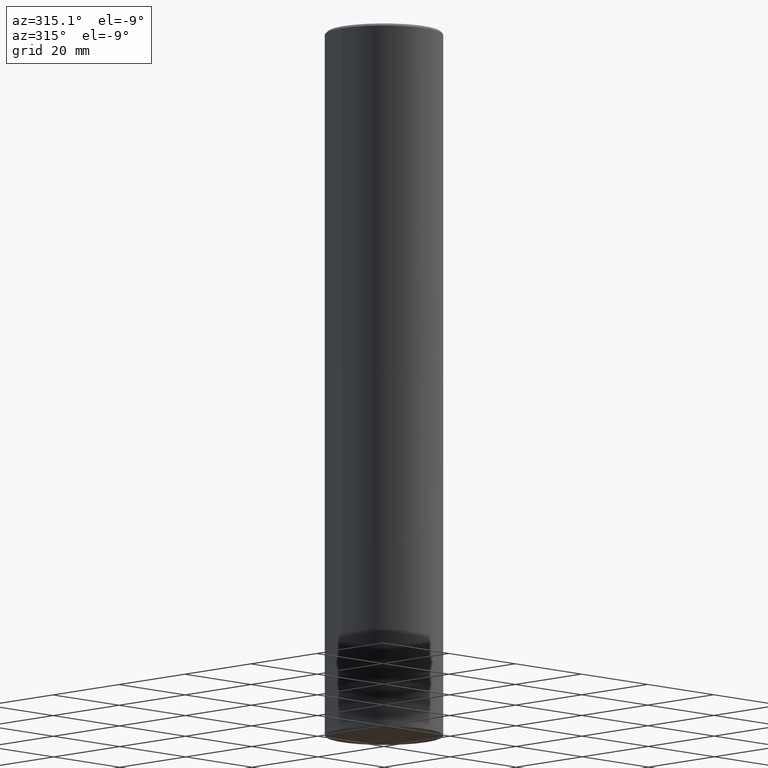
[diagram: clean part render]
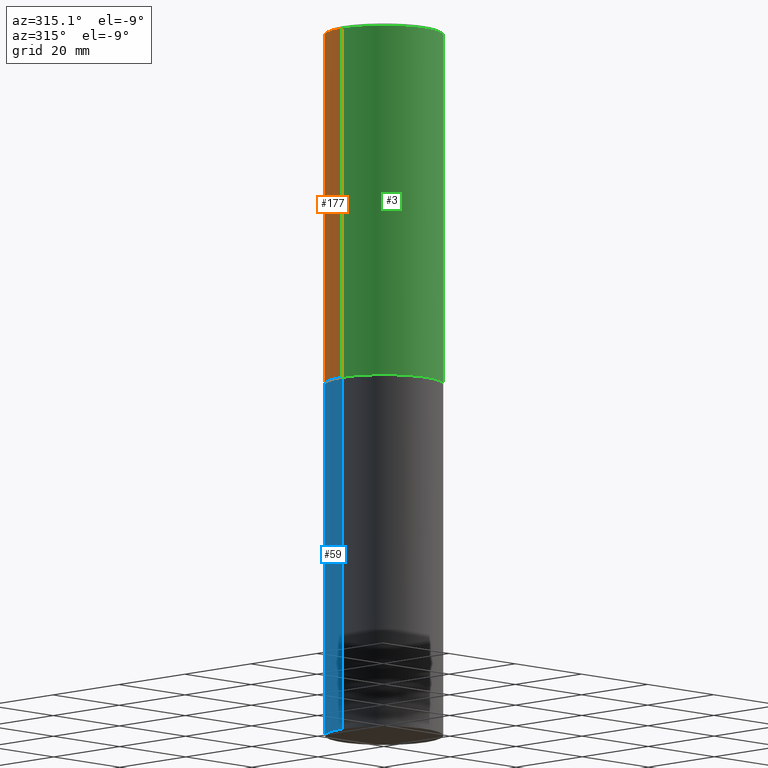
[diagram: same view with three faces highlighted in distinct colors, each labeled with its STEP entity id]
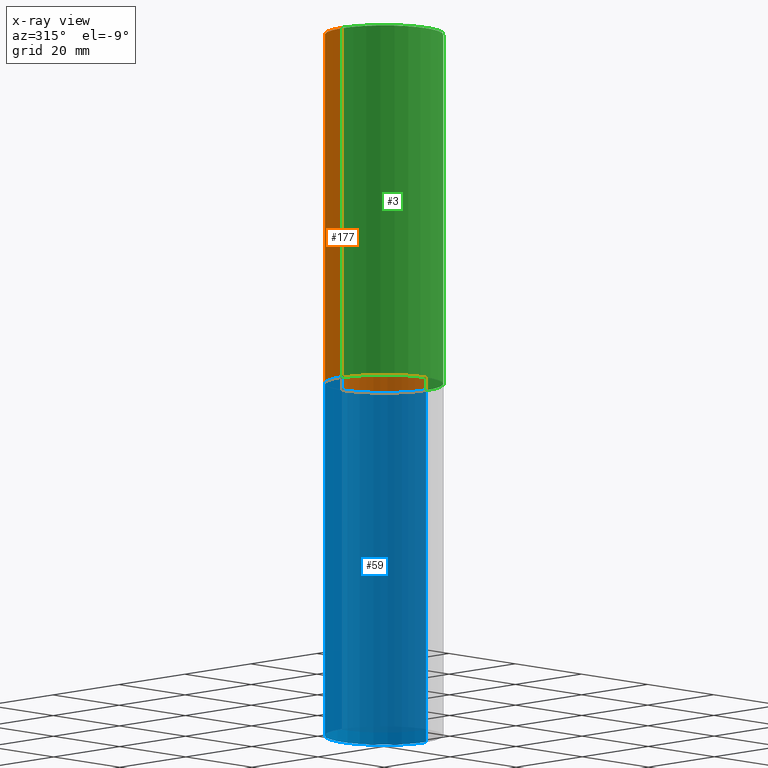
[diagram: x-ray of the same camera — body ghosted, the three highlighted faces saturated]
A machine part, auxiliary view with three faces highlighted in distinct colors.
The next image is the same camera in x-ray (body ghosted, the three faces saturated) — at least one of them is partly hidden behind the body in this view.
Their STEP definitions:

[orange] entity #177 — the highlighted cylindrical surface (partial cylindrical patch) has radius 12.7 mm, axis along (-0, 0, 1).
#23 = EDGE_CURVE ( 'NONE', #330, #86, #279, .T. ) ;
#25 = DIRECTION ( 'NONE',  ( -2.445468806185136597E-29, 3.491481338843145583E-15, 1.000000000000000000 ) ) ;
#48 = CARTESIAN_POINT ( 'NONE',  ( 0.4999999999999998335, -3.491481338843132566E-15, 2.438088387897967336E-29 ) ) ;
#51 = LINE ( 'NONE', #48, #65 ) ;
#65 = VECTOR ( 'NONE', #209, 39.37007874015748143 ) ;
#72 = VERTEX_POINT ( 'NONE', #77 ) ;
#73 = AXIS2_PLACEMENT_3D ( 'NONE', #359, #25, #101 ) ;
#77 = CARTESIAN_POINT ( 'NONE',  ( 0.4999999999999997224, -3.500078625662627502E-15, -0.02000000000000011491 ) ) ;
#86 = VERTEX_POINT ( 'NONE', #272 ) ;
#89 = ORIENTED_EDGE ( 'NONE', *, *, #23, .T. ) ;
#101 = DIRECTION ( 'NONE',  ( 1.000000000000000000, -6.982962677686266711E-15, 0.000000000000000000 ) ) ;
#104 = CIRCLE ( 'NONE', #112, 0.5000000000000000000 ) ;
#110 = ORIENTED_EDGE ( 'NONE', *, *, #358, .F. ) ;
#112 = AXIS2_PLACEMENT_3D ( 'NONE', #123, #323, #184 ) ;
#123 = CARTESIAN_POINT ( 'NONE',  ( 7.333960949749226429E-29, -1.047095253519059492E-14, -2.999000000000000554 ) ) ;
#128 = CARTESIAN_POINT ( 'NONE',  ( 0.5000000000000000000, -1.396243387403372828E-14, -2.999000000000000554 ) ) ;
#152 = DIRECTION ( 'NONE',  ( 1.000000000000000000, -6.982962677686267499E-15, 4.876176775795936353E-29 ) ) ;
#159 = CARTESIAN_POINT ( 'NONE',  ( -0.5000000000000000000, -1.717677402183226998E-15, -2.999000000000000554 ) ) ;
#161 = EDGE_CURVE ( 'NONE', #344, #330, #104, .T. ) ;
#163 = ORIENTED_EDGE ( 'NONE', *, *, #161, .T. ) ;
#177 = ADVANCED_FACE ( 'NONE', ( #352 ), #231, .T. ) ;
#184 = DIRECTION ( 'NONE',  ( 1.000000000000000000, -6.982962677686266711E-15, 0.000000000000000000 ) ) ;
#188 = EDGE_LOOP ( 'NONE', ( #163, #89, #110, #360 ) ) ;
#195 = EDGE_CURVE ( 'NONE', #344, #72, #51, .T. ) ;
#209 = DIRECTION ( 'NONE',  ( -2.445468806185136877E-29, 3.491481338843145188E-15, 1.000000000000000000 ) ) ;
#230 = CIRCLE ( 'NONE', #73, 0.4999999999999997224 ) ;
#231 = CYLINDRICAL_SURFACE ( 'NONE', #273, 0.4999999999999998335 ) ;
#255 = DIRECTION ( 'NONE',  ( -2.445468806185136877E-29, 3.491481338843145188E-15, 1.000000000000000000 ) ) ;
#263 = CARTESIAN_POINT ( 'NONE',  ( -0.4999999999999998335, 3.552713678800499746E-15, -2.459467545127452330E-29 ) ) ;
#272 = CARTESIAN_POINT ( 'NONE',  ( -0.4999999999999997224, 3.421651712066268085E-15, -0.02000000000000011491 ) ) ;
#273 = AXIS2_PLACEMENT_3D ( 'NONE', #292, #293, #152 ) ;
#279 = LINE ( 'NONE', #263, #300 ) ;
#292 = CARTESIAN_POINT ( 'NONE',  ( 0.000000000000000000, 0.000000000000000000, 0.000000000000000000 ) ) ;
#293 = DIRECTION ( 'NONE',  ( -2.445468806185136597E-29, 3.491481338843145583E-15, 1.000000000000000000 ) ) ;
#300 = VECTOR ( 'NONE', #255, 39.37007874015748143 ) ;
#323 = DIRECTION ( 'NONE',  ( -2.445468806185136597E-29, 3.491481338843145583E-15, 1.000000000000000000 ) ) ;
#330 = VERTEX_POINT ( 'NONE', #159 ) ;
#344 = VERTEX_POINT ( 'NONE', #128 ) ;
#352 = FACE_OUTER_BOUND ( 'NONE', #188, .T. ) ;
#358 = EDGE_CURVE ( 'NONE', #72, #86, #230, .T. ) ;
#359 = CARTESIAN_POINT ( 'NONE',  ( 4.890937612370302060E-31, -6.982962677686331052E-17, -0.02000000000000011491 ) ) ;
#360 = ORIENTED_EDGE ( 'NONE', *, *, #195, .F. ) ;

[blue] entity #59 — the highlighted cylindrical surface (partial cylindrical patch) has radius 12.7 mm, axis along (-0, 0, 1).
#12 = EDGE_LOOP ( 'NONE', ( #243, #336, #288, #257 ) ) ;
#15 = DIRECTION ( 'NONE',  ( -2.445468806185136877E-29, 3.491481338843145188E-15, 1.000000000000000000 ) ) ;
#26 = AXIS2_PLACEMENT_3D ( 'NONE', #164, #282, #35 ) ;
#35 = DIRECTION ( 'NONE',  ( 1.000000000000000000, -6.982962677686266711E-15, 4.876176775795935793E-29 ) ) ;
#50 = CARTESIAN_POINT ( 'NONE',  ( -0.5000000000000000000, -1.215895234599365439E-14, -3.000000000000000444 ) ) ;
#55 = AXIS2_PLACEMENT_3D ( 'NONE', #335, #130, #58 ) ;
#58 = DIRECTION ( 'NONE',  ( 1.000000000000000000, -6.982962677686262766E-15, 0.000000000000000000 ) ) ;
#59 = ADVANCED_FACE ( 'NONE', ( #284 ), #310, .T. ) ;
#67 = VERTEX_POINT ( 'NONE', #96 ) ;
#75 = CARTESIAN_POINT ( 'NONE',  ( 7.336406418555409790E-29, -1.047444401652943635E-14, -3.000000000000000444 ) ) ;
#81 = CIRCLE ( 'NONE', #240, 0.5000000000000000000 ) ;
#94 = LINE ( 'NONE', #265, #146 ) ;
#96 = CARTESIAN_POINT ( 'NONE',  ( -0.5000000000000000000, -1.215895234599365439E-14, -6.000000000000000888 ) ) ;
#129 = VERTEX_POINT ( 'NONE', #50 ) ;
#130 = DIRECTION ( 'NONE',  ( -2.445468806185136597E-29, 3.491481338843145583E-15, 1.000000000000000000 ) ) ;
#134 = DIRECTION ( 'NONE',  ( -2.445468806185136877E-29, 3.491481338843145188E-15, 1.000000000000000000 ) ) ;
#138 = VERTEX_POINT ( 'NONE', #232 ) ;
#146 = VECTOR ( 'NONE', #15, 39.37007874015748143 ) ;
#150 = DIRECTION ( 'NONE',  ( 1.000000000000000000, -6.982962677686266711E-15, 0.000000000000000000 ) ) ;
#164 = CARTESIAN_POINT ( 'NONE',  ( 0.000000000000000000, 0.000000000000000000, 0.000000000000000000 ) ) ;
#190 = VECTOR ( 'NONE', #134, 39.37007874015748143 ) ;
#232 = CARTESIAN_POINT ( 'NONE',  ( 0.5000000000000000000, -1.396592535537257129E-14, -3.000000000000000444 ) ) ;
#240 = AXIS2_PLACEMENT_3D ( 'NONE', #75, #266, #150 ) ;
#243 = ORIENTED_EDGE ( 'NONE', *, *, #354, .T. ) ;
#257 = ORIENTED_EDGE ( 'NONE', *, *, #264, .F. ) ;
#264 = EDGE_CURVE ( 'NONE', #280, #138, #94, .T. ) ;
#265 = CARTESIAN_POINT ( 'NONE',  ( 0.5000000000000000000, -3.491481338843133355E-15, 2.438088387897967896E-29 ) ) ;
#266 = DIRECTION ( 'NONE',  ( -2.445468806185136597E-29, 3.491481338843145583E-15, 1.000000000000000000 ) ) ;
#267 = EDGE_CURVE ( 'NONE', #138, #129, #81, .T. ) ;
#269 = LINE ( 'NONE', #306, #190 ) ;
#280 = VERTEX_POINT ( 'NONE', #347 ) ;
#282 = DIRECTION ( 'NONE',  ( -2.445468806185136597E-29, 3.491481338843145583E-15, 1.000000000000000000 ) ) ;
#284 = FACE_OUTER_BOUND ( 'NONE', #12, .T. ) ;
#288 = ORIENTED_EDGE ( 'NONE', *, *, #267, .F. ) ;
#304 = EDGE_CURVE ( 'NONE', #67, #129, #269, .T. ) ;
#306 = CARTESIAN_POINT ( 'NONE',  ( -0.5000000000000000000, 3.552713678800500929E-15, -2.459467545127452891E-29 ) ) ;
#310 = CYLINDRICAL_SURFACE ( 'NONE', #26, 0.5000000000000000000 ) ;
#335 = CARTESIAN_POINT ( 'NONE',  ( 1.467281283711081958E-28, -2.094888803305887271E-14, -6.000000000000000888 ) ) ;
#336 = ORIENTED_EDGE ( 'NONE', *, *, #304, .T. ) ;
#347 = CARTESIAN_POINT ( 'NONE',  ( 0.5000000000000000000, -2.444036937190200606E-14, -6.000000000000000888 ) ) ;
#354 = EDGE_CURVE ( 'NONE', #280, #67, #356, .T. ) ;
#356 = CIRCLE ( 'NONE', #55, 0.5000000000000000000 ) ;

[green] entity #3 — the highlighted cylindrical surface (partial cylindrical patch) has radius 12.7 mm, axis along (-0, 0, 1).
#3 = ADVANCED_FACE ( 'NONE', ( #102 ), #162, .T. ) ;
#9 = EDGE_LOOP ( 'NONE', ( #135, #41, #364, #194 ) ) ;
#23 = EDGE_CURVE ( 'NONE', #330, #86, #279, .T. ) ;
#32 = DIRECTION ( 'NONE',  ( 1.000000000000000000, -6.982962677686266711E-15, 0.000000000000000000 ) ) ;
#41 = ORIENTED_EDGE ( 'NONE', *, *, #42, .T. ) ;
#42 = EDGE_CURVE ( 'NONE', #330, #344, #132, .T. ) ;
#45 = DIRECTION ( 'NONE',  ( -2.445468806185136597E-29, 3.491481338843145583E-15, 1.000000000000000000 ) ) ;
#48 = CARTESIAN_POINT ( 'NONE',  ( 0.4999999999999998335, -3.491481338843132566E-15, 2.438088387897967336E-29 ) ) ;
#49 = CIRCLE ( 'NONE', #211, 0.4999999999999997224 ) ;
#51 = LINE ( 'NONE', #48, #65 ) ;
#65 = VECTOR ( 'NONE', #209, 39.37007874015748143 ) ;
#72 = VERTEX_POINT ( 'NONE', #77 ) ;
#77 = CARTESIAN_POINT ( 'NONE',  ( 0.4999999999999997224, -3.500078625662627502E-15, -0.02000000000000011491 ) ) ;
#86 = VERTEX_POINT ( 'NONE', #272 ) ;
#102 = FACE_OUTER_BOUND ( 'NONE', #9, .T. ) ;
#128 = CARTESIAN_POINT ( 'NONE',  ( 0.5000000000000000000, -1.396243387403372828E-14, -2.999000000000000554 ) ) ;
#132 = CIRCLE ( 'NONE', #239, 0.5000000000000000000 ) ;
#135 = ORIENTED_EDGE ( 'NONE', *, *, #23, .F. ) ;
#141 = DIRECTION ( 'NONE',  ( -2.445468806185136597E-29, 3.491481338843145583E-15, 1.000000000000000000 ) ) ;
#148 = DIRECTION ( 'NONE',  ( 1.000000000000000000, -6.982962677686266711E-15, 0.000000000000000000 ) ) ;
#159 = CARTESIAN_POINT ( 'NONE',  ( -0.5000000000000000000, -1.717677402183226998E-15, -2.999000000000000554 ) ) ;
#162 = CYLINDRICAL_SURFACE ( 'NONE', #244, 0.4999999999999998335 ) ;
#194 = ORIENTED_EDGE ( 'NONE', *, *, #236, .F. ) ;
#195 = EDGE_CURVE ( 'NONE', #344, #72, #51, .T. ) ;
#209 = DIRECTION ( 'NONE',  ( -2.445468806185136877E-29, 3.491481338843145188E-15, 1.000000000000000000 ) ) ;
#211 = AXIS2_PLACEMENT_3D ( 'NONE', #212, #45, #148 ) ;
#212 = CARTESIAN_POINT ( 'NONE',  ( 4.890937612370302060E-31, -6.982962677686331052E-17, -0.02000000000000011491 ) ) ;
#228 = CARTESIAN_POINT ( 'NONE',  ( 0.000000000000000000, 0.000000000000000000, 0.000000000000000000 ) ) ;
#236 = EDGE_CURVE ( 'NONE', #86, #72, #49, .T. ) ;
#239 = AXIS2_PLACEMENT_3D ( 'NONE', #309, #317, #32 ) ;
#244 = AXIS2_PLACEMENT_3D ( 'NONE', #228, #141, #316 ) ;
#255 = DIRECTION ( 'NONE',  ( -2.445468806185136877E-29, 3.491481338843145188E-15, 1.000000000000000000 ) ) ;
#263 = CARTESIAN_POINT ( 'NONE',  ( -0.4999999999999998335, 3.552713678800499746E-15, -2.459467545127452330E-29 ) ) ;
#272 = CARTESIAN_POINT ( 'NONE',  ( -0.4999999999999997224, 3.421651712066268085E-15, -0.02000000000000011491 ) ) ;
#279 = LINE ( 'NONE', #263, #300 ) ;
#300 = VECTOR ( 'NONE', #255, 39.37007874015748143 ) ;
#309 = CARTESIAN_POINT ( 'NONE',  ( 7.333960949749226429E-29, -1.047095253519059492E-14, -2.999000000000000554 ) ) ;
#316 = DIRECTION ( 'NONE',  ( 1.000000000000000000, -6.982962677686267499E-15, 4.876176775795936353E-29 ) ) ;
#317 = DIRECTION ( 'NONE',  ( -2.445468806185136597E-29, 3.491481338843145583E-15, 1.000000000000000000 ) ) ;
#330 = VERTEX_POINT ( 'NONE', #159 ) ;
#344 = VERTEX_POINT ( 'NONE', #128 ) ;
#364 = ORIENTED_EDGE ( 'NONE', *, *, #195, .T. ) ;